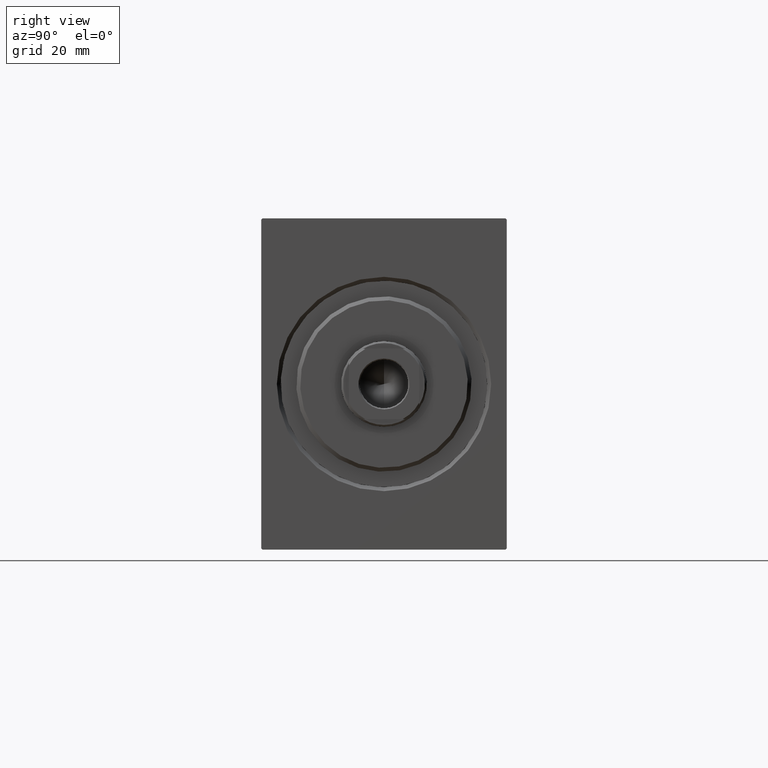
[diagram: clean part render]
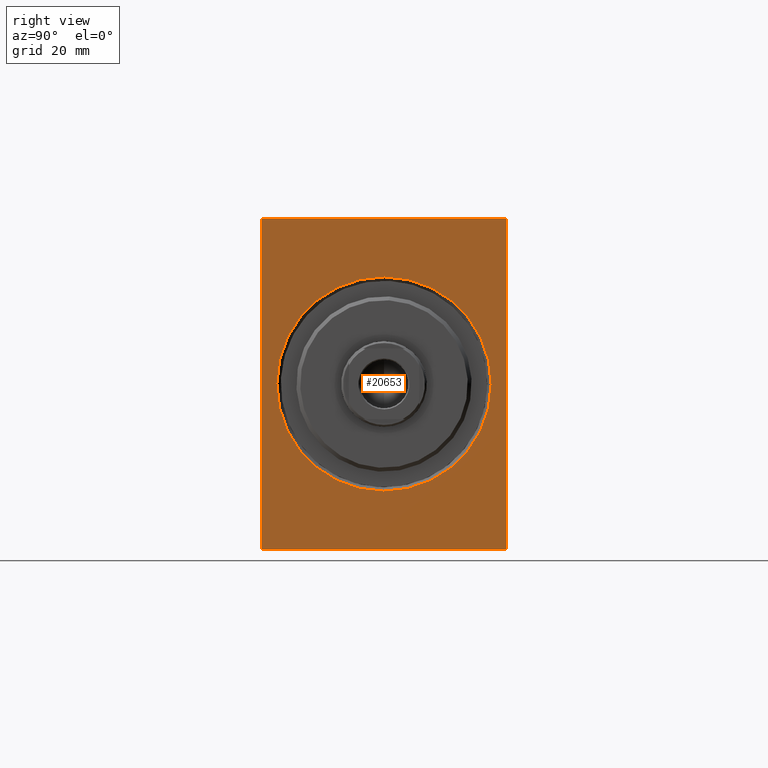
[diagram: same view with one face highlighted and labeled with its STEP entity id]
A machine part, right view. The second image highlights one B-rep face of the part: STEP entity #20653.
In plain terms, the highlighted planar face has unit normal (-1, -0, 0).
Its self-contained STEP definition (entity closure, byte-faithful):
#321 = EDGE_CURVE ( 'NONE', #28737, #16541, #4328, .T. ) ;
#662 = VERTEX_POINT ( 'NONE', #13760 ) ;
#992 = DIRECTION ( 'NONE',  ( 0.000000000000000000, -1.000000000000000000, 0.000000000000000000 ) ) ;
#1137 = CARTESIAN_POINT ( 'NONE',  ( 0.000000000000000000, 0.000000000000000000, 0.000000000000000000 ) ) ;
#2042 = CARTESIAN_POINT ( 'NONE',  ( 0.000000000000000000, 31.20000000000003482, 42.50000000000000711 ) ) ;
#2610 = CARTESIAN_POINT ( 'NONE',  ( 0.000000000000000000, -31.49999999999999289, 42.50000000000000711 ) ) ;
#3519 = CARTESIAN_POINT ( 'NONE',  ( 0.000000000000000000, 0.000000000000000000, 0.000000000000000000 ) ) ;
#3882 = VERTEX_POINT ( 'NONE', #24732 ) ;
#4328 = LINE ( 'NONE', #17845, #25985 ) ;
#5106 = CARTESIAN_POINT ( 'NONE',  ( 0.000000000000000000, -31.20000000000003482, 42.50000000000000711 ) ) ;
#5425 = AXIS2_PLACEMENT_3D ( 'NONE', #3519, #10610, #13720 ) ;
#7480 = EDGE_CURVE ( 'NONE', #26455, #25325, #22530, .T. ) ;
#9419 = DIRECTION ( 'NONE',  ( 0.000000000000000000, 0.000000000000000000, -1.000000000000000000 ) ) ;
#10091 = EDGE_CURVE ( 'NONE', #25325, #26455, #43127, .T. ) ;
#10534 = AXIS2_PLACEMENT_3D ( 'NONE', #1137, #38622, #14677 ) ;
#10610 = DIRECTION ( 'NONE',  ( 1.000000000000000000, 0.000000000000000000, 0.000000000000000000 ) ) ;
#11291 = DIRECTION ( 'NONE',  ( 0.000000000000000000, 1.000000000000000000, 0.000000000000000000 ) ) ;
#12249 = EDGE_LOOP ( 'NONE', ( #33607, #43449, #14142, #41115, #33317, #15722, #25535, #38944 ) ) ;
#12980 = VECTOR ( 'NONE', #42382, 1000.000000000000000 ) ;
#13720 = DIRECTION ( 'NONE',  ( 0.000000000000000000, 0.000000000000000000, -1.000000000000000000 ) ) ;
#13760 = CARTESIAN_POINT ( 'NONE',  ( 0.000000000000000000, -31.19999999999999929, -42.50000000000000711 ) ) ;
#14142 = ORIENTED_EDGE ( 'NONE', *, *, #28735, .F. ) ;
#14344 = DIRECTION ( 'NONE',  ( 0.000000000000000000, -0.7071067811865474617, -0.7071067811865474617 ) ) ;
#14382 = CARTESIAN_POINT ( 'NONE',  ( 0.000000000000000000, 3.367778697655224463E-15, -27.50000000000002487 ) ) ;
#14677 = DIRECTION ( 'NONE',  ( 0.000000000000000000, 0.000000000000000000, -1.000000000000000000 ) ) ;
#15037 = VECTOR ( 'NONE', #23844, 999.9999999999998863 ) ;
#15363 = LINE ( 'NONE', #42399, #27047 ) ;
#15706 = VECTOR ( 'NONE', #11291, 1000.000000000000000 ) ;
#15722 = ORIENTED_EDGE ( 'NONE', *, *, #30145, .T. ) ;
#15735 = LINE ( 'NONE', #42998, #19590 ) ;
#16142 = DIRECTION ( 'NONE',  ( 0.000000000000000000, 0.000000000000000000, -1.000000000000000000 ) ) ;
#16389 = FACE_OUTER_BOUND ( 'NONE', #12249, .T. ) ;
#16541 = VERTEX_POINT ( 'NONE', #5106 ) ;
#16608 = CARTESIAN_POINT ( 'NONE',  ( 0.000000000000000000, 0.000000000000000000, 27.50000000000002487 ) ) ;
#17047 = PLANE ( 'NONE',  #5425 ) ;
#17845 = CARTESIAN_POINT ( 'NONE',  ( 0.000000000000000000, 31.50000000000000000, 42.50000000000000711 ) ) ;
#19590 = VECTOR ( 'NONE', #22823, 1000.000000000000114 ) ;
#20385 = FACE_BOUND ( 'NONE', #27657, .T. ) ;
#20498 = EDGE_CURVE ( 'NONE', #28737, #31219, #15735, .T. ) ;
#20653 = ADVANCED_FACE ( 'NONE', ( #20385, #16389 ), #17047, .F. ) ;
#20758 = CARTESIAN_POINT ( 'NONE',  ( 0.000000000000000000, -31.49999999999999289, 42.20000000000001705 ) ) ;
#22286 = CARTESIAN_POINT ( 'NONE',  ( 0.000000000000000000, 0.000000000000000000, 0.000000000000000000 ) ) ;
#22530 = CIRCLE ( 'NONE', #31733, 27.50000000000002487 ) ;
#22823 = DIRECTION ( 'NONE',  ( -0.000000000000000000, 0.7071067811865474617, -0.7071067811865474617 ) ) ;
#23210 = CARTESIAN_POINT ( 'NONE',  ( 0.000000000000000000, 31.20000000000004192, -42.50000000000000711 ) ) ;
#23844 = DIRECTION ( 'NONE',  ( -0.000000000000000000, -0.7071067811865802133, 0.7071067811865149322 ) ) ;
#24440 = VECTOR ( 'NONE', #16142, 1000.000000000000000 ) ;
#24732 = CARTESIAN_POINT ( 'NONE',  ( 0.000000000000000000, -31.49999999999999289, -42.20000000000004547 ) ) ;
#24906 = CARTESIAN_POINT ( 'NONE',  ( 0.000000000000000000, -31.49999999999999289, 42.20000000000001705 ) ) ;
#25264 = LINE ( 'NONE', #31247, #15706 ) ;
#25325 = VERTEX_POINT ( 'NONE', #16608 ) ;
#25376 = VERTEX_POINT ( 'NONE', #23210 ) ;
#25535 = ORIENTED_EDGE ( 'NONE', *, *, #42428, .F. ) ;
#25985 = VECTOR ( 'NONE', #992, 1000.000000000000000 ) ;
#26455 = VERTEX_POINT ( 'NONE', #14382 ) ;
#27047 = VECTOR ( 'NONE', #29546, 1000.000000000000000 ) ;
#27657 = EDGE_LOOP ( 'NONE', ( #43353, #36942 ) ) ;
#27683 = CARTESIAN_POINT ( 'NONE',  ( 0.000000000000000000, 31.50000000000000711, -42.20000000000004547 ) ) ;
#28735 = EDGE_CURVE ( 'NONE', #33097, #31219, #15363, .T. ) ;
#28737 = VERTEX_POINT ( 'NONE', #2042 ) ;
#28926 = EDGE_CURVE ( 'NONE', #33097, #25376, #34310, .T. ) ;
#29546 = DIRECTION ( 'NONE',  ( 0.000000000000000000, -8.163404592832031500E-17, 1.000000000000000000 ) ) ;
#29863 = EDGE_CURVE ( 'NONE', #662, #25376, #25264, .T. ) ;
#30145 = EDGE_CURVE ( 'NONE', #662, #3882, #37378, .T. ) ;
#30978 = CARTESIAN_POINT ( 'NONE',  ( 0.000000000000000000, 31.50000000000000711, -42.20000000000004547 ) ) ;
#31219 = VERTEX_POINT ( 'NONE', #32280 ) ;
#31247 = CARTESIAN_POINT ( 'NONE',  ( 0.000000000000000000, -31.49999999999999289, -42.50000000000000711 ) ) ;
#31733 = AXIS2_PLACEMENT_3D ( 'NONE', #22286, #36038, #9419 ) ;
#32280 = CARTESIAN_POINT ( 'NONE',  ( 0.000000000000000000, 31.50000000000000000, 42.20000000000004547 ) ) ;
#33097 = VERTEX_POINT ( 'NONE', #27683 ) ;
#33317 = ORIENTED_EDGE ( 'NONE', *, *, #29863, .F. ) ;
#33509 = EDGE_CURVE ( 'NONE', #37179, #16541, #40932, .T. ) ;
#33607 = ORIENTED_EDGE ( 'NONE', *, *, #321, .F. ) ;
#34131 = VECTOR ( 'NONE', #14344, 1000.000000000000114 ) ;
#34310 = LINE ( 'NONE', #30978, #34131 ) ;
#36038 = DIRECTION ( 'NONE',  ( 1.000000000000000000, 0.000000000000000000, 0.000000000000000000 ) ) ;
#36942 = ORIENTED_EDGE ( 'NONE', *, *, #7480, .T. ) ;
#37179 = VERTEX_POINT ( 'NONE', #24906 ) ;
#37378 = LINE ( 'NONE', #41342, #15037 ) ;
#38622 = DIRECTION ( 'NONE',  ( 1.000000000000000000, 0.000000000000000000, 0.000000000000000000 ) ) ;
#38944 = ORIENTED_EDGE ( 'NONE', *, *, #33509, .T. ) ;
#40932 = LINE ( 'NONE', #20758, #12980 ) ;
#41115 = ORIENTED_EDGE ( 'NONE', *, *, #28926, .T. ) ;
#41342 = CARTESIAN_POINT ( 'NONE',  ( 0.000000000000000000, -31.19999999999999929, -42.50000000000000711 ) ) ;
#42382 = DIRECTION ( 'NONE',  ( -0.000000000000000000, 0.7071067811865066055, 0.7071067811865884289 ) ) ;
#42399 = CARTESIAN_POINT ( 'NONE',  ( 0.000000000000000000, 31.50000000000000711, -42.50000000000000711 ) ) ;
#42428 = EDGE_CURVE ( 'NONE', #37179, #3882, #43405, .T. ) ;
#42998 = CARTESIAN_POINT ( 'NONE',  ( 0.000000000000000000, 31.20000000000003482, 42.50000000000000711 ) ) ;
#43127 = CIRCLE ( 'NONE', #10534, 27.50000000000002487 ) ;
#43353 = ORIENTED_EDGE ( 'NONE', *, *, #10091, .T. ) ;
#43405 = LINE ( 'NONE', #2610, #24440 ) ;
#43449 = ORIENTED_EDGE ( 'NONE', *, *, #20498, .T. ) ;